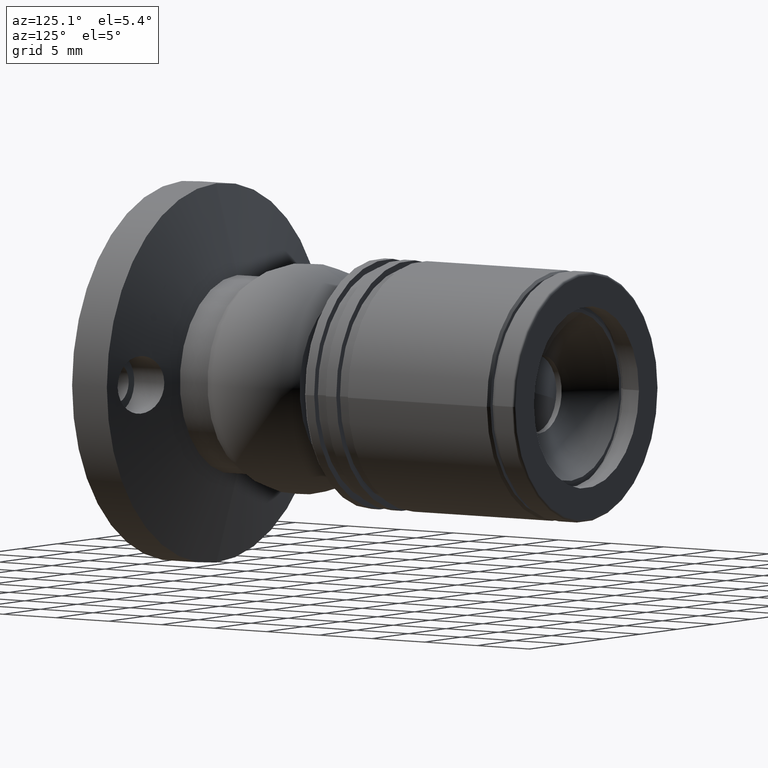
[diagram: clean part render]
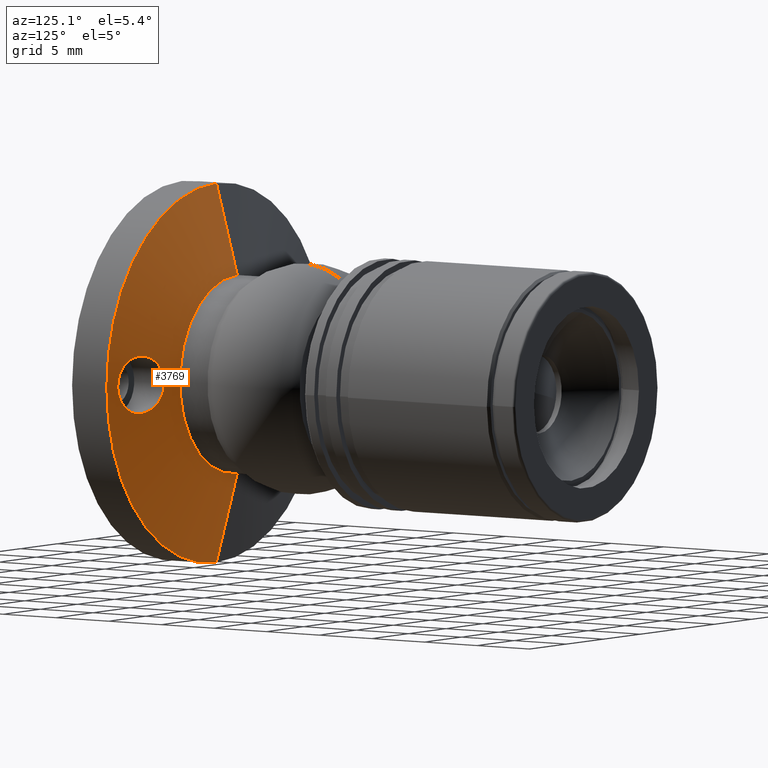
[diagram: same view with one face highlighted and labeled with its STEP entity id]
A machine part, auxiliary view. The second image highlights one B-rep face of the part: STEP entity #3769.
In plain terms, the highlighted conical surface has half-angle 74.313 deg.
Its self-contained STEP definition (entity closure, byte-faithful):
#130 = ORIENTED_EDGE ( 'NONE', *, *, #2725, .F. ) ;
#250 = CARTESIAN_POINT ( 'NONE',  ( 0.000000000000000000, 3.299999999999997158, -14.80000000000006821 ) ) ;
#270 = CARTESIAN_POINT ( 'NONE',  ( 10.91969794659929249, 4.328592697976514359, -2.192966355244876819 ) ) ;
#297 = CARTESIAN_POINT ( 'NONE',  ( 9.265350789534453568, 4.853348280930822156, -0.3021285704732378785 ) ) ;
#405 = CARTESIAN_POINT ( 'NONE',  ( 13.18133154922639960, 3.730775391524367990, 1.502397159564282436 ) ) ;
#434 = CARTESIAN_POINT ( 'NONE',  ( 11.50000000000000000, 4.165571282608390824, -2.250000000000000888 ) ) ;
#436 = DIRECTION ( 'NONE',  ( -0.000000000000000000, -1.000000000000000000, -0.000000000000000000 ) ) ;
#989 = CARTESIAN_POINT ( 'NONE',  ( 9.557872497213475427, 4.753220862772448818, -1.145573659761363050 ) ) ;
#1185 = CARTESIAN_POINT ( 'NONE',  ( 11.50000000000000000, 4.165571282608389936, 2.250000000000001776 ) ) ;
#1196 = CARTESIAN_POINT ( 'NONE',  ( 12.21279104506719548, 3.974473009961083214, -2.139057135092098605 ) ) ;
#1507 = CIRCLE ( 'NONE', #6292, 7.749999999999886313 ) ;
#1722 = CARTESIAN_POINT ( 'NONE',  ( 9.485737583720485588, 4.777602329259408087, -1.013729546553002070 ) ) ;
#1811 = EDGE_CURVE ( 'NONE', #8115, #2716, #5521, .T. ) ;
#1858 = CARTESIAN_POINT ( 'NONE',  ( 11.78791284404554673, 4.086938841107057740, 2.236158745399159375 ) ) ;
#1879 = CARTESIAN_POINT ( 'NONE',  ( 10.38741158890388228, 4.487787966308354193, 1.961052327049659594 ) ) ;
#1887 = CARTESIAN_POINT ( 'NONE',  ( 13.73512166856552597, 3.598383761786389190, -0.2983757346619831941 ) ) ;
#1890 = DIRECTION ( 'NONE',  ( 0.000000000000000000, 0.000000000000000000, -1.000000000000000000 ) ) ;
#1909 = CARTESIAN_POINT ( 'NONE',  ( 9.819328902345043630, 4.666803573830049956, 1.503142353117863816 ) ) ;
#1919 = CONICAL_SURFACE ( 'NONE', #6675, 14.80000000000006821, 1.296998606986966340 ) ;
#1984 = CARTESIAN_POINT ( 'NONE',  ( 13.28904728468469720, 3.704372790826961470, -1.396312106831633093 ) ) ;
#2458 = CARTESIAN_POINT ( 'NONE',  ( 11.50000000000000000, 4.165571282608390824, -2.250000000000000888 ) ) ;
#2578 = CARTESIAN_POINT ( 'NONE',  ( 12.85526066029179404, 3.810986213008465739, 1.801986509026675121 ) ) ;
#2590 = CARTESIAN_POINT ( 'NONE',  ( 0.000000000000000000, 3.299999999999997158, 0.000000000000000000 ) ) ;
#2609 = CARTESIAN_POINT ( 'NONE',  ( 12.21248033436882352, 3.974553747106014612, 2.139165831256740535 ) ) ;
#2645 = CARTESIAN_POINT ( 'NONE',  ( 13.45862598811753230, 3.663853251124038479, -1.147085813465471560 ) ) ;
#2673 = CARTESIAN_POINT ( 'NONE',  ( 12.85792490439207114, 3.810323830721348948, -1.799972403731702197 ) ) ;
#2716 = VERTEX_POINT ( 'NONE', #9047 ) ;
#2725 = EDGE_CURVE ( 'NONE', #3576, #6409, #8762, .T. ) ;
#3138 = CARTESIAN_POINT ( 'NONE',  ( 10.38483495048628136, 4.487746441262035368, -1.975413582205038265 ) ) ;
#3247 = ORIENTED_EDGE ( 'NONE', *, *, #8810, .T. ) ;
#3303 = CARTESIAN_POINT ( 'NONE',  ( 13.63240719859958006, 3.622590242755576284, -0.7332939012131900469 ) ) ;
#3335 = CARTESIAN_POINT ( 'NONE',  ( 12.97174558402921463, 3.782155517773788223, 1.708226548026154257 ) ) ;
#3356 = CARTESIAN_POINT ( 'NONE',  ( 10.14460431619576752, 4.562926115157814877, 1.801799584375887608 ) ) ;
#3364 = CARTESIAN_POINT ( 'NONE',  ( 13.75016220567986025, 3.594855515939294310, -0.1467465528424625465 ) ) ;
#3407 = DIRECTION ( 'NONE',  ( -0.000000000000000000, -1.000000000000000000, -0.000000000000000000 ) ) ;
#3488 = DIRECTION ( 'NONE',  ( -0.000000000000000000, -1.000000000000000000, -0.000000000000000000 ) ) ;
#3553 = EDGE_CURVE ( 'NONE', #7217, #8115, #6236, .T. ) ;
#3576 = VERTEX_POINT ( 'NONE', #2458 ) ;
#3672 = B_SPLINE_CURVE_WITH_KNOTS ( 'NONE', 3,
 ( #7059, #9153, #1858, #7087, #2609, #5559, #6961, #2578, #3335, #405, #8451, #8418, #4882, #7723, #7692, #3364, #1887, #4037, #3303, #2645, #1984, #4784, #2673, #7659, #5591, #1196, #8482, #4853, #4004, #434 ),
 .UNSPECIFIED., .F., .F.,
 ( 4, 2, 2, 2, 2, 2, 2, 2, 2, 2, 2, 2, 2, 2, 4 ),
 ( 0.005340617005587950002, 0.005787658457529509283, 0.006234699909471067697, 0.006681741361412626978, 0.007128782813354186260, 0.007575824265295745541, 0.008022865717237304822, 0.008916948621120423385, 0.009363990073061982666, 0.009811031525003540213, 0.01070511442888665878, 0.01115215588082821979, 0.01159919733276977907, 0.01204623878471134009, 0.01249328023665290111 ),
 .UNSPECIFIED. ) ;
#3769 = ADVANCED_FACE ( 'NONE', ( #7514, #9115 ), #1919, .T. ) ;
#3897 = CARTESIAN_POINT ( 'NONE',  ( 0.000000000000000000, 5.279999999999986926, -7.749999999999886313 ) ) ;
#4004 = CARTESIAN_POINT ( 'NONE',  ( 11.64368537974348072, 4.125967975224528850, -2.250000000000000888 ) ) ;
#4037 = CARTESIAN_POINT ( 'NONE',  ( 13.67608969555999465, 3.612287591462389980, -0.5911265424626260812 ) ) ;
#4061 = CARTESIAN_POINT ( 'NONE',  ( 11.20870394464374264, 4.246608249534031820, 2.235720826954974427 ) ) ;
#4237 = ORIENTED_EDGE ( 'NONE', *, *, #5675, .F. ) ;
#4538 = EDGE_LOOP ( 'NONE', ( #8060, #3247, #7213, #5279 ) ) ;
#4601 = CARTESIAN_POINT ( 'NONE',  ( 0.000000000000000000, 3.299999999999997158, -14.80000000000006821 ) ) ;
#4676 = CARTESIAN_POINT ( 'NONE',  ( 9.311919955588253472, 4.836894053564001261, 0.6027138228019998101 ) ) ;
#4707 = DIRECTION ( 'NONE',  ( 1.179029902936002060E-16, -0.2703896362259252117, 0.9627509774711277002 ) ) ;
#4774 = CARTESIAN_POINT ( 'NONE',  ( 10.02910533640335444, 4.599409677252084272, 1.708964938444417880 ) ) ;
#4784 = CARTESIAN_POINT ( 'NONE',  ( 12.97201745240051807, 3.782086896811354126, -1.708108322519054090 ) ) ;
#4788 = CARTESIAN_POINT ( 'NONE',  ( 0.000000000000000000, 3.299999999999997158, 0.000000000000000000 ) ) ;
#4812 = CARTESIAN_POINT ( 'NONE',  ( 11.35443501380274434, 4.205692656842770383, 2.250000000000077272 ) ) ;
#4853 = CARTESIAN_POINT ( 'NONE',  ( 11.78938992067757496, 4.086538801256503817, -2.236025651414998539 ) ) ;
#4882 = CARTESIAN_POINT ( 'NONE',  ( 13.51526856546680122, 3.650405248811621650, 1.011522595796730650 ) ) ;
#5038 = VECTOR ( 'NONE', #4707, 1000.000000000000000 ) ;
#5279 = ORIENTED_EDGE ( 'NONE', *, *, #3553, .F. ) ;
#5318 = CARTESIAN_POINT ( 'NONE',  ( 11.50000000000000000, 4.165571282608390824, -2.250000000000000888 ) ) ;
#5351 = CARTESIAN_POINT ( 'NONE',  ( 9.723806579691167684, 4.698105256395989748, -1.389005104623618703 ) ) ;
#5374 = VERTEX_POINT ( 'NONE', #8206 ) ;
#5385 = CARTESIAN_POINT ( 'NONE',  ( 9.249969343341890138, 4.858734108523654172, -0.1495982783557349982 ) ) ;
#5422 = CARTESIAN_POINT ( 'NONE',  ( 9.818777869027707439, 4.666980661875431480, -1.502599695043794981 ) ) ;
#5494 = LINE ( 'NONE', #6289, #5038 ) ;
#5521 = CIRCLE ( 'NONE', #5572, 14.80000000000006821 ) ;
#5553 = VECTOR ( 'NONE', #7537, 1000.000000000000000 ) ;
#5559 = CARTESIAN_POINT ( 'NONE',  ( 12.48198815460079025, 3.905039504308574383, 2.029620147885410564 ) ) ;
#5572 = AXIS2_PLACEMENT_3D ( 'NONE', #2590, #3407, #8527 ) ;
#5591 = CARTESIAN_POINT ( 'NONE',  ( 12.48214528464877482, 3.904999572167430877, -2.029538652245523433 ) ) ;
#5675 = EDGE_CURVE ( 'NONE', #6409, #3576, #3672, .T. ) ;
#6125 = CARTESIAN_POINT ( 'NONE',  ( 9.325124299433399599, 4.832603144509207027, -0.5956966123921075829 ) ) ;
#6236 = LINE ( 'NONE', #250, #5553 ) ;
#6289 = CARTESIAN_POINT ( 'NONE',  ( 1.812477262738091158E-15, 3.299999999999997158, 14.80000000000006821 ) ) ;
#6292 = AXIS2_PLACEMENT_3D ( 'NONE', #7876, #3488, #8614 ) ;
#6409 = VERTEX_POINT ( 'NONE', #7310 ) ;
#6546 = EDGE_LOOP ( 'NONE', ( #130, #4237 ) ) ;
#6675 = AXIS2_PLACEMENT_3D ( 'NONE', #4788, #436, #1890 ) ;
#6728 = CARTESIAN_POINT ( 'NONE',  ( 11.21100929694393677, 4.245224394599603102, -2.250000000000000888 ) ) ;
#6853 = CARTESIAN_POINT ( 'NONE',  ( 9.250061454613799583, 4.858701946382219639, 0.3005776856966599908 ) ) ;
#6894 = CARTESIAN_POINT ( 'NONE',  ( 10.51578570421037817, 4.448784450044404259, 2.028606018512689069 ) ) ;
#6961 = CARTESIAN_POINT ( 'NONE',  ( 12.61059744074852063, 3.872379493011381069, 1.962258943323108573 ) ) ;
#6989 = CARTESIAN_POINT ( 'NONE',  ( 9.485737848850071430, 4.777603060126986101, 1.013588942659856107 ) ) ;
#7059 = CARTESIAN_POINT ( 'NONE',  ( 11.50000000000000000, 4.165571282608389936, 2.250000000000001776 ) ) ;
#7087 = CARTESIAN_POINT ( 'NONE',  ( 12.07105161116441749, 4.011562817067473752, 2.181100593227662365 ) ) ;
#7213 = ORIENTED_EDGE ( 'NONE', *, *, #1811, .F. ) ;
#7217 = VERTEX_POINT ( 'NONE', #3897 ) ;
#7310 = CARTESIAN_POINT ( 'NONE',  ( 11.50000000000000000, 4.165571282608389936, 2.250000000000001776 ) ) ;
#7514 = FACE_BOUND ( 'NONE', #6546, .T. ) ;
#7537 = DIRECTION ( 'NONE',  ( 0.000000000000000000, -0.2703896362259252117, -0.9627509774711277002 ) ) ;
#7590 = CARTESIAN_POINT ( 'NONE',  ( 10.13504880530965480, 4.565373592844485628, -1.812915614412373033 ) ) ;
#7659 = CARTESIAN_POINT ( 'NONE',  ( 12.61365510672305312, 3.871606220387648012, -1.960518554728201357 ) ) ;
#7692 = CARTESIAN_POINT ( 'NONE',  ( 13.74967153354379334, 3.594970771701583967, 0.3008920100758724070 ) ) ;
#7723 = CARTESIAN_POINT ( 'NONE',  ( 13.68823921073303573, 3.609330733721956452, 0.6017063799514590361 ) ) ;
#7876 = CARTESIAN_POINT ( 'NONE',  ( 0.000000000000000000, 5.279999999999986926, 0.000000000000000000 ) ) ;
#8060 = ORIENTED_EDGE ( 'NONE', *, *, #9101, .T. ) ;
#8115 = VERTEX_POINT ( 'NONE', #4601 ) ;
#8206 = CARTESIAN_POINT ( 'NONE',  ( 1.380789266038637967E-15, 5.279999999999986926, 7.749999999999886313 ) ) ;
#8280 = CARTESIAN_POINT ( 'NONE',  ( 9.369213425710034571, 4.817351513116428841, -0.7380035569130893869 ) ) ;
#8418 = CARTESIAN_POINT ( 'NONE',  ( 13.44348091276722457, 3.667523308798835480, 1.143481774371439386 ) ) ;
#8442 = CARTESIAN_POINT ( 'NONE',  ( 10.92564029270289261, 4.327619591561168377, 2.180232082733379428 ) ) ;
#8451 = CARTESIAN_POINT ( 'NONE',  ( 13.27585663057115362, 3.707866682881264975, 1.389604927404419099 ) ) ;
#8472 = CARTESIAN_POINT ( 'NONE',  ( 10.78687778948652287, 4.368110973930551033, 2.139013060094521190 ) ) ;
#8482 = CARTESIAN_POINT ( 'NONE',  ( 12.07421752534180293, 4.010726931305772069, -2.180328294905605979 ) ) ;
#8527 = DIRECTION ( 'NONE',  ( 0.000000000000000000, 0.000000000000000000, -1.000000000000000000 ) ) ;
#8614 = DIRECTION ( 'NONE',  ( 0.000000000000000000, 0.000000000000000000, -1.000000000000000000 ) ) ;
#8762 = B_SPLINE_CURVE_WITH_KNOTS ( 'NONE', 3,
 ( #5318, #6728, #270, #3138, #7590, #5422, #5351, #989, #1722, #8280, #6125, #297, #5385, #6853, #4676, #6989, #9174, #9144, #1909, #4774, #3356, #1879, #6894, #8472, #8442, #4061, #4812, #1185 ),
 .UNSPECIFIED., .F., .F.,
 ( 4, 2, 2, 2, 2, 2, 2, 2, 2, 2, 2, 2, 2, 4 ),
 ( 0.01249328023665290111, 0.01339240319350790652, 0.01429152615036291193, 0.01474108762879041204, 0.01519064910721791214, 0.01564021058564541225, 0.01608977206407291236, 0.01698889502092791604, 0.01743845649935541614, 0.01788801797778291625, 0.01833757945621041288, 0.01878714093463791299, 0.01923670241306541309, 0.01968626389149291320 ),
 .UNSPECIFIED. ) ;
#8810 = EDGE_CURVE ( 'NONE', #5374, #2716, #5494, .T. ) ;
#9047 = CARTESIAN_POINT ( 'NONE',  ( 1.812477262738091158E-15, 3.299999999999997158, 14.80000000000006821 ) ) ;
#9101 = EDGE_CURVE ( 'NONE', #7217, #5374, #1507, .T. ) ;
#9115 = FACE_OUTER_BOUND ( 'NONE', #4538, .T. ) ;
#9144 = CARTESIAN_POINT ( 'NONE',  ( 9.725037538186279917, 4.697698810186207830, 1.390662063071639309 ) ) ;
#9153 = CARTESIAN_POINT ( 'NONE',  ( 11.64474901855270517, 4.125674809595692771, 2.250000000000075939 ) ) ;
#9174 = CARTESIAN_POINT ( 'NONE',  ( 9.558071355312728556, 4.753152410868519695, 1.146013024994712470 ) ) ;